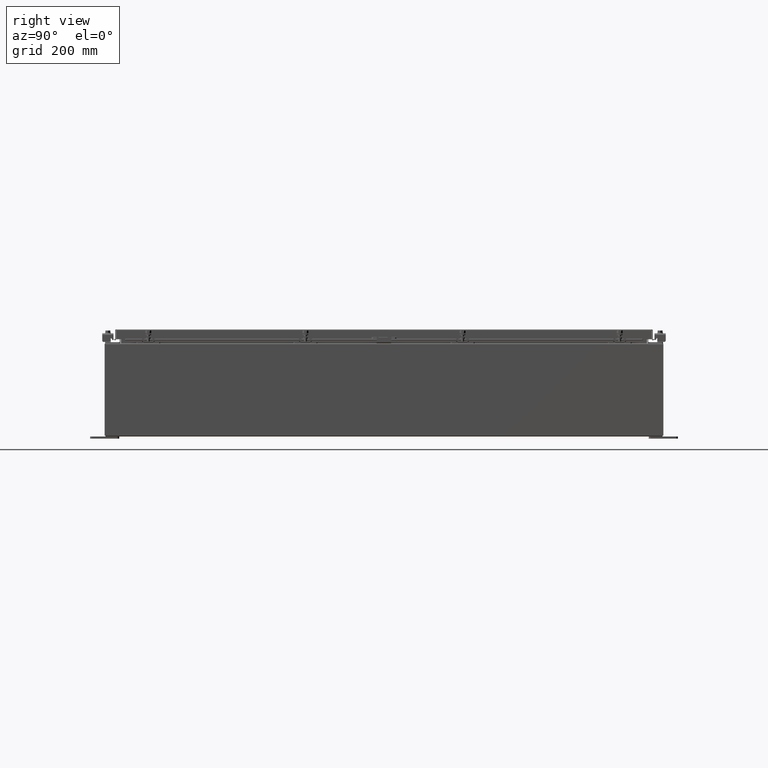
[diagram: clean part render]
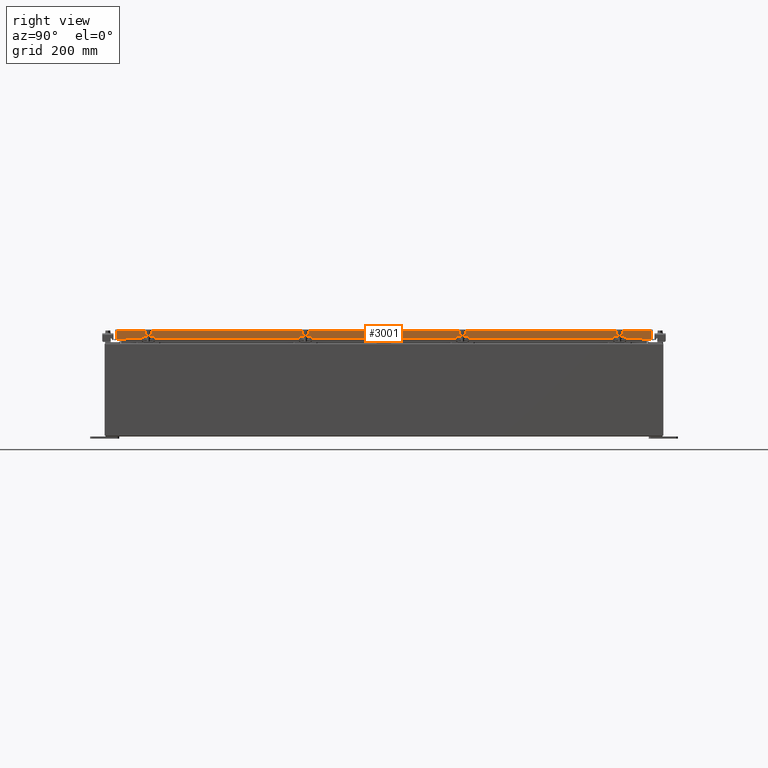
[diagram: same view with one face highlighted and labeled with its STEP entity id]
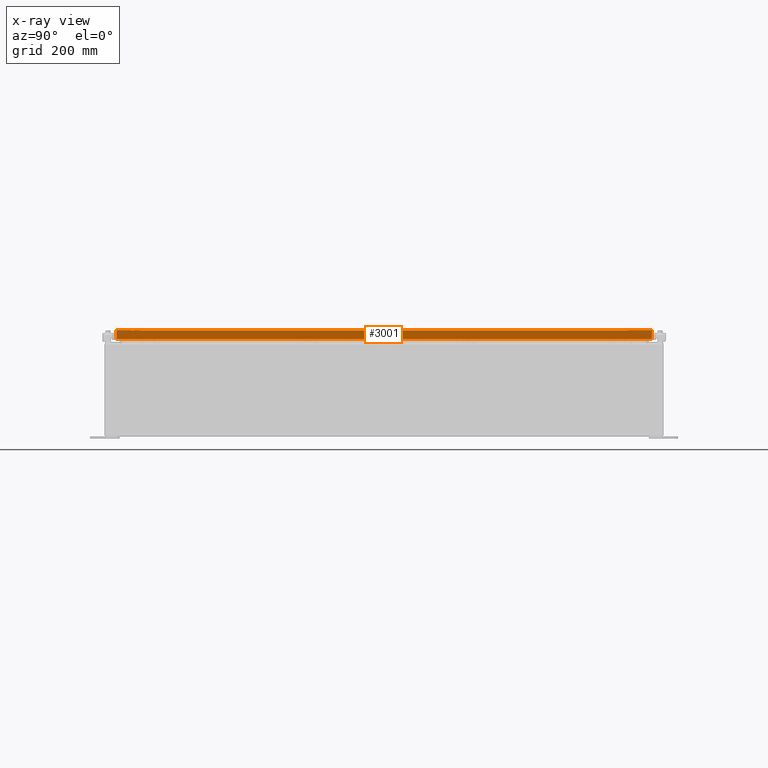
[diagram: x-ray of the same camera — body ghosted, the highlighted face saturated]
A machine part, right view. The second image highlights one B-rep face of the part: STEP entity #3001.
The next image is the same camera in x-ray: the body ghosted, the highlighted face saturated — about 0% of this face is hidden behind the body in this view.
In plain terms, the highlighted planar face has unit normal (1, 0, 0).
Its self-contained STEP definition (entity closure, byte-faithful):
#1930 = EDGE_CURVE ( 'NONE', #29535, #20176, #35691, .T. ) ;
#3001 = ADVANCED_FACE ( 'NONE', ( #42690 ), #17158, .T. ) ;
#4393 = DIRECTION ( 'NONE',  ( 1.000000000000000000, 0.0000000000000000000, 2.818880942772360100E-015 ) ) ;
#4558 = VECTOR ( 'NONE', #24380, 39.37007874015748100 ) ;
#4754 = CARTESIAN_POINT ( 'NONE',  ( 17.07799999999999900, -23.00515786437626900, -0.07469999999999978000 ) ) ;
#5758 = VECTOR ( 'NONE', #44784, 39.37007874015748100 ) ;
#6789 = DIRECTION ( 'NONE',  ( 0.0000000000000000000, -1.000000000000000000, 0.0000000000000000000 ) ) ;
#7754 = VECTOR ( 'NONE', #13387, 39.37007874015748100 ) ;
#8118 = ORIENTED_EDGE ( 'NONE', *, *, #22922, .F. ) ;
#8326 = VECTOR ( 'NONE', #6789, 39.37007874015748100 ) ;
#9716 = EDGE_CURVE ( 'NONE', #55321, #27209, #31468, .T. ) ;
#10471 = CARTESIAN_POINT ( 'NONE',  ( 17.07800000000000300, -23.09400000000000100, -0.8499999999999996400 ) ) ;
#11277 = CARTESIAN_POINT ( 'NONE',  ( 17.07799999999999600, -22.25515786437626200, -0.8500000000000020900 ) ) ;
#11561 = EDGE_CURVE ( 'NONE', #13780, #55321, #19889, .T. ) ;
#13387 = DIRECTION ( 'NONE',  ( -2.818880942772360100E-015, -6.982962677686267500E-015, 1.000000000000000000 ) ) ;
#13780 = VERTEX_POINT ( 'NONE', #14380 ) ;
#14380 = CARTESIAN_POINT ( 'NONE',  ( 17.07799999999999600, 22.25515786437627200, -0.8500000000000020900 ) ) ;
#14457 = CARTESIAN_POINT ( 'NONE',  ( 17.07800000000000300, -23.09400000000000100, -0.8499999999999996400 ) ) ;
#14873 = ORIENTED_EDGE ( 'NONE', *, *, #9716, .F. ) ;
#17158 = PLANE ( 'NONE',  #21706 ) ;
#18851 = CARTESIAN_POINT ( 'NONE',  ( 17.07799999999999900, 0.0000000000000000000, -0.08770000000000007000 ) ) ;
#19280 = LINE ( 'NONE', #4754, #7754 ) ;
#19337 = EDGE_CURVE ( 'NONE', #20176, #37632, #25111, .T. ) ;
#19889 = LINE ( 'NONE', #22242, #8326 ) ;
#20176 = VERTEX_POINT ( 'NONE', #40888 ) ;
#21706 = AXIS2_PLACEMENT_3D ( 'NONE', #26013, #4393, #43017 ) ;
#22242 = CARTESIAN_POINT ( 'NONE',  ( 17.07799999999999600, 22.25515786437628000, -0.8500000000000020900 ) ) ;
#22922 = EDGE_CURVE ( 'NONE', #29535, #13780, #50280, .T. ) ;
#23088 = CARTESIAN_POINT ( 'NONE',  ( 17.07799999999999900, 23.00515786437627600, 2.090458211578982100E-013 ) ) ;
#23689 = VECTOR ( 'NONE', #28762, 39.37007874015748100 ) ;
#24380 = DIRECTION ( 'NONE',  ( 0.0000000000000000000, -1.000000000000000000, 0.0000000000000000000 ) ) ;
#25111 = LINE ( 'NONE', #18851, #23689 ) ;
#26013 = CARTESIAN_POINT ( 'NONE',  ( 17.07799999999999900, 0.0000000000000000000, 4.840166239667794100E-014 ) ) ;
#27209 = VERTEX_POINT ( 'NONE', #30225 ) ;
#28762 = DIRECTION ( 'NONE',  ( 0.0000000000000000000, -1.000000000000000000, 0.0000000000000000000 ) ) ;
#29535 = VERTEX_POINT ( 'NONE', #51707 ) ;
#29795 = ORIENTED_EDGE ( 'NONE', *, *, #1930, .T. ) ;
#30225 = CARTESIAN_POINT ( 'NONE',  ( 17.07800000000000300, -23.00515786437626200, -0.8499999999999996400 ) ) ;
#31468 = LINE ( 'NONE', #14457, #5758 ) ;
#31635 = EDGE_LOOP ( 'NONE', ( #44060, #14873, #37903, #8118, #29795, #48617 ) ) ;
#34871 = VECTOR ( 'NONE', #37116, 39.37007874015748100 ) ;
#35691 = LINE ( 'NONE', #23088, #34871 ) ;
#37116 = DIRECTION ( 'NONE',  ( -2.818880942772360100E-015, -6.982962677686267500E-015, 1.000000000000000000 ) ) ;
#37632 = VERTEX_POINT ( 'NONE', #44654 ) ;
#37903 = ORIENTED_EDGE ( 'NONE', *, *, #11561, .F. ) ;
#40888 = CARTESIAN_POINT ( 'NONE',  ( 17.07799999999999900, 23.00515786437627200, -0.08770000000000007000 ) ) ;
#42690 = FACE_OUTER_BOUND ( 'NONE', #31635, .T. ) ;
#43017 = DIRECTION ( 'NONE',  ( 2.818880942772360100E-015, 0.0000000000000000000, -1.000000000000000000 ) ) ;
#44060 = ORIENTED_EDGE ( 'NONE', *, *, #50648, .F. ) ;
#44654 = CARTESIAN_POINT ( 'NONE',  ( 17.07799999999999900, -23.00515786437626900, -0.08770000000000007000 ) ) ;
#44784 = DIRECTION ( 'NONE',  ( 0.0000000000000000000, -1.000000000000000000, 0.0000000000000000000 ) ) ;
#48617 = ORIENTED_EDGE ( 'NONE', *, *, #19337, .T. ) ;
#50280 = LINE ( 'NONE', #10471, #4558 ) ;
#50648 = EDGE_CURVE ( 'NONE', #27209, #37632, #19280, .T. ) ;
#51707 = CARTESIAN_POINT ( 'NONE',  ( 17.07800000000000300, 23.00515786437628000, -0.8499999999999996400 ) ) ;
#55321 = VERTEX_POINT ( 'NONE', #11277 ) ;